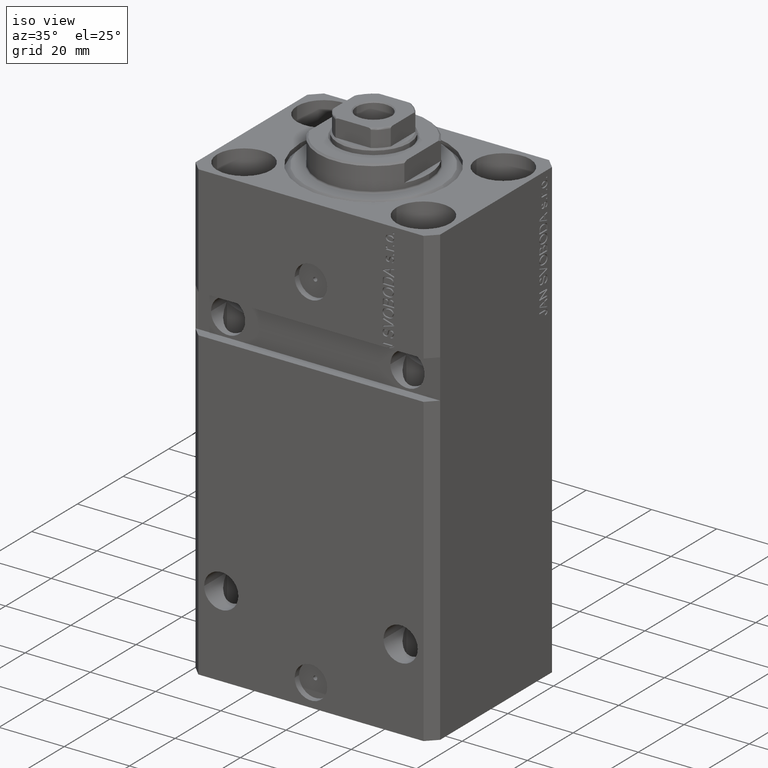
[diagram: clean part render]
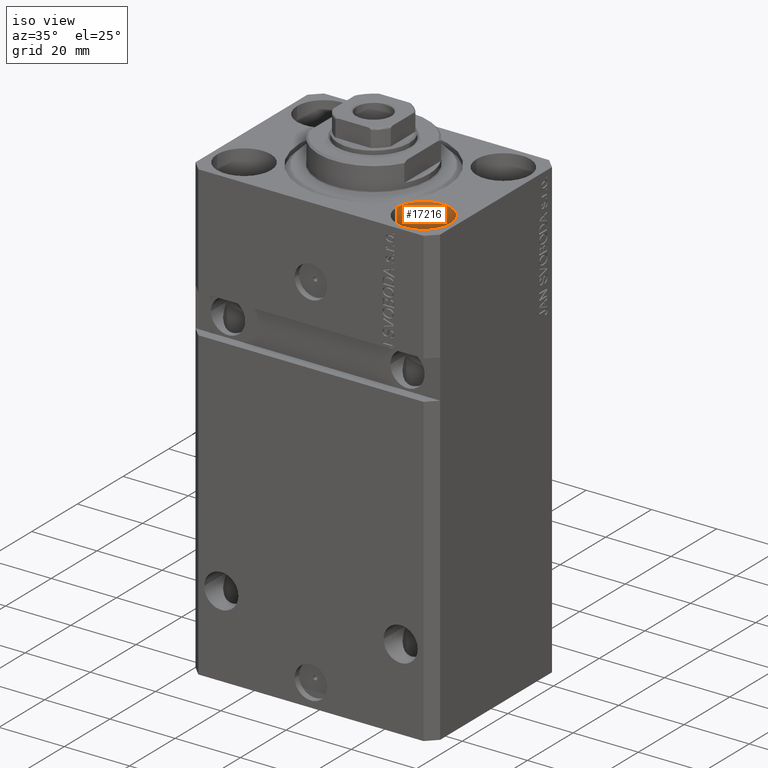
[diagram: same view with one face highlighted and labeled with its STEP entity id]
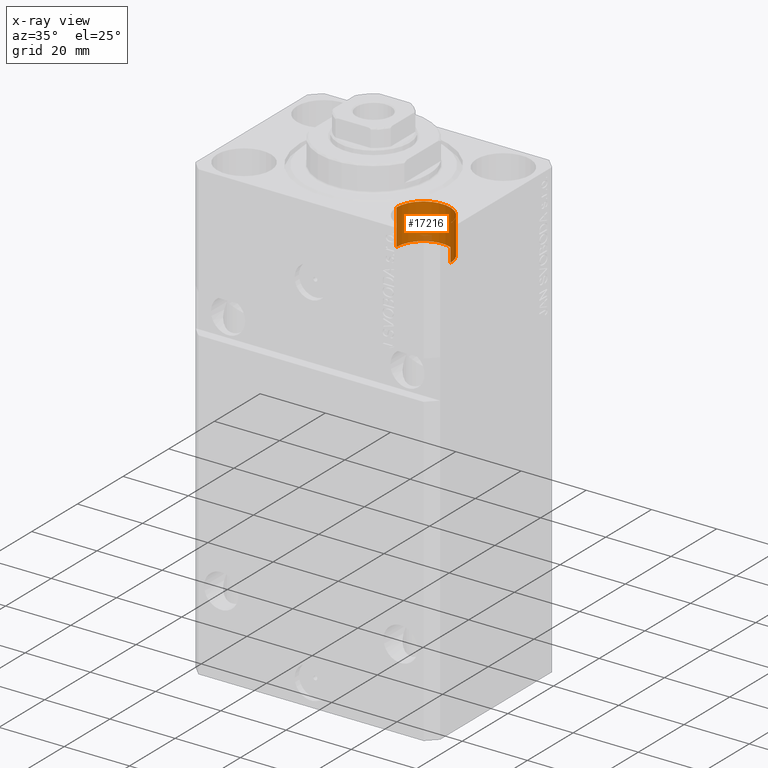
[diagram: x-ray of the same camera — body ghosted, the highlighted face saturated]
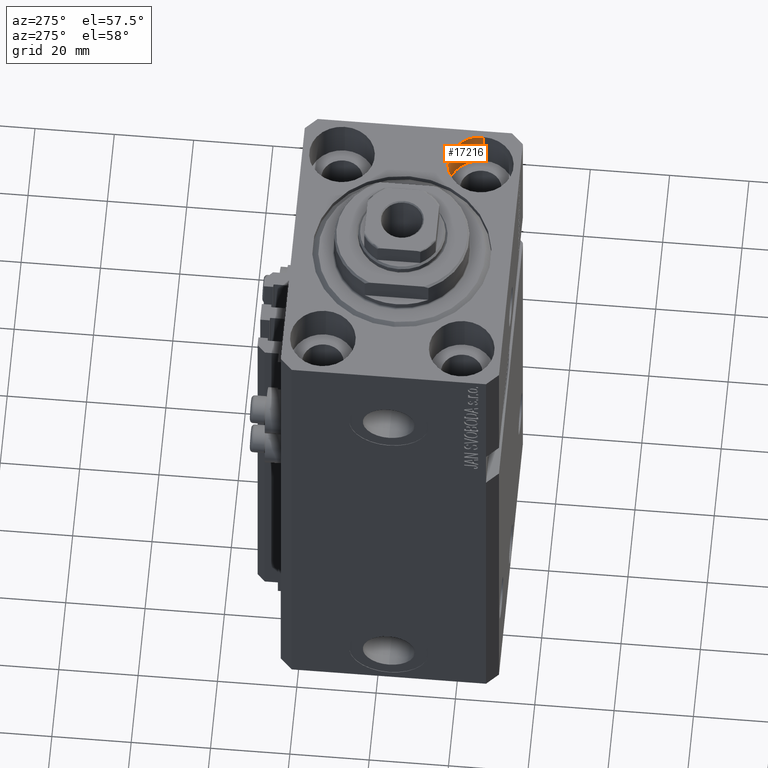
[diagram: same view with one face highlighted and labeled with its STEP entity id]
A machine part, iso view. The second image highlights one B-rep face of the part: STEP entity #17216.
The next image is the same camera in x-ray: the body ghosted, the highlighted face saturated — about 3% of this face is hidden behind the body in this view.
A second angle (auxiliary view) of the same face is appended — the face is thin or edge-on in the first view.
In plain terms, the highlighted cylindrical surface (edge-blend (fillet) strip) has radius 8.25 mm, axis along (0, 0, 1).
Its self-contained STEP definition (entity closure, byte-faithful):
#604 = VECTOR ( 'NONE', #20145, 1000.000000000000000 ) ;
#1312 = CARTESIAN_POINT ( 'NONE',  ( 35.75000000000000711, -17.50000000000000000, 0.000000000000000000 ) ) ;
#1471 = EDGE_CURVE ( 'NONE', #33649, #40921, #32505, .T. ) ;
#4858 = VERTEX_POINT ( 'NONE', #22123 ) ;
#7397 = CARTESIAN_POINT ( 'NONE',  ( 35.75000000000000711, -17.50000000000000000, -11.00000000000000000 ) ) ;
#7500 = DIRECTION ( 'NONE',  ( 1.000000000000000000, 0.000000000000000000, 0.000000000000000000 ) ) ;
#7663 = VERTEX_POINT ( 'NONE', #1312 ) ;
#9239 = EDGE_CURVE ( 'NONE', #33649, #7663, #17103, .T. ) ;
#9839 = ORIENTED_EDGE ( 'NONE', *, *, #9239, .T. ) ;
#10095 = CARTESIAN_POINT ( 'NONE',  ( 19.25000000000000000, -17.50000000000000000, -11.00000000000000000 ) ) ;
#10105 = CARTESIAN_POINT ( 'NONE',  ( 19.25000000000000000, -17.50000000000000000, -11.00000000000000000 ) ) ;
#10959 = CARTESIAN_POINT ( 'NONE',  ( 27.50000000000000355, -17.50000000000000000, -11.00000000000000000 ) ) ;
#11198 = CYLINDRICAL_SURFACE ( 'NONE', #29546, 8.250000000000000000 ) ;
#13536 = CARTESIAN_POINT ( 'NONE',  ( 35.75000000000000711, -17.50000000000000000, -11.00000000000000000 ) ) ;
#17103 = LINE ( 'NONE', #13536, #32638 ) ;
#17216 = ADVANCED_FACE ( 'NONE', ( #40645 ), #11198, .F. ) ;
#17582 = ORIENTED_EDGE ( 'NONE', *, *, #1471, .F. ) ;
#18189 = CARTESIAN_POINT ( 'NONE',  ( 27.50000000000000355, -17.50000000000000000, -11.00000000000000000 ) ) ;
#18370 = DIRECTION ( 'NONE',  ( 1.000000000000000000, 0.000000000000000000, 0.000000000000000000 ) ) ;
#18763 = EDGE_CURVE ( 'NONE', #7663, #4858, #45667, .T. ) ;
#20145 = DIRECTION ( 'NONE',  ( -0.000000000000000000, -0.000000000000000000, 1.000000000000000000 ) ) ;
#21054 = ORIENTED_EDGE ( 'NONE', *, *, #23782, .F. ) ;
#21377 = DIRECTION ( 'NONE',  ( 0.000000000000000000, 0.000000000000000000, 1.000000000000000000 ) ) ;
#21965 = DIRECTION ( 'NONE',  ( -0.000000000000000000, -0.000000000000000000, 1.000000000000000000 ) ) ;
#22123 = CARTESIAN_POINT ( 'NONE',  ( 19.25000000000000000, -17.50000000000000000, 0.000000000000000000 ) ) ;
#23482 = AXIS2_PLACEMENT_3D ( 'NONE', #32647, #21377, #7500 ) ;
#23782 = EDGE_CURVE ( 'NONE', #40921, #4858, #24237, .T. ) ;
#24237 = LINE ( 'NONE', #10105, #604 ) ;
#29546 = AXIS2_PLACEMENT_3D ( 'NONE', #10959, #21965, #18370 ) ;
#30941 = AXIS2_PLACEMENT_3D ( 'NONE', #18189, #33745, #37561 ) ;
#31150 = ORIENTED_EDGE ( 'NONE', *, *, #18763, .T. ) ;
#32505 = CIRCLE ( 'NONE', #30941, 8.250000000000000000 ) ;
#32638 = VECTOR ( 'NONE', #34619, 1000.000000000000000 ) ;
#32647 = CARTESIAN_POINT ( 'NONE',  ( 27.50000000000000355, -17.50000000000000000, 0.000000000000000000 ) ) ;
#33649 = VERTEX_POINT ( 'NONE', #7397 ) ;
#33745 = DIRECTION ( 'NONE',  ( 0.000000000000000000, 0.000000000000000000, 1.000000000000000000 ) ) ;
#34619 = DIRECTION ( 'NONE',  ( -0.000000000000000000, -0.000000000000000000, 1.000000000000000000 ) ) ;
#37561 = DIRECTION ( 'NONE',  ( 1.000000000000000000, 0.000000000000000000, 0.000000000000000000 ) ) ;
#40645 = FACE_OUTER_BOUND ( 'NONE', #47167, .T. ) ;
#40921 = VERTEX_POINT ( 'NONE', #10095 ) ;
#45667 = CIRCLE ( 'NONE', #23482, 8.250000000000000000 ) ;
#47167 = EDGE_LOOP ( 'NONE', ( #21054, #17582, #9839, #31150 ) ) ;